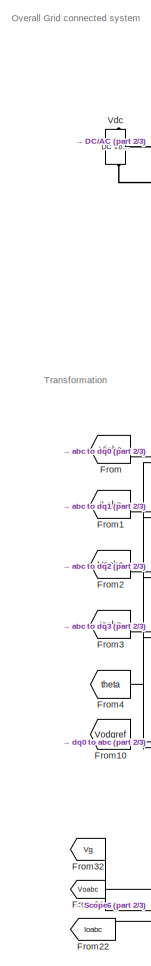
[diagram: root canvas - part 1/3, left side, full height]
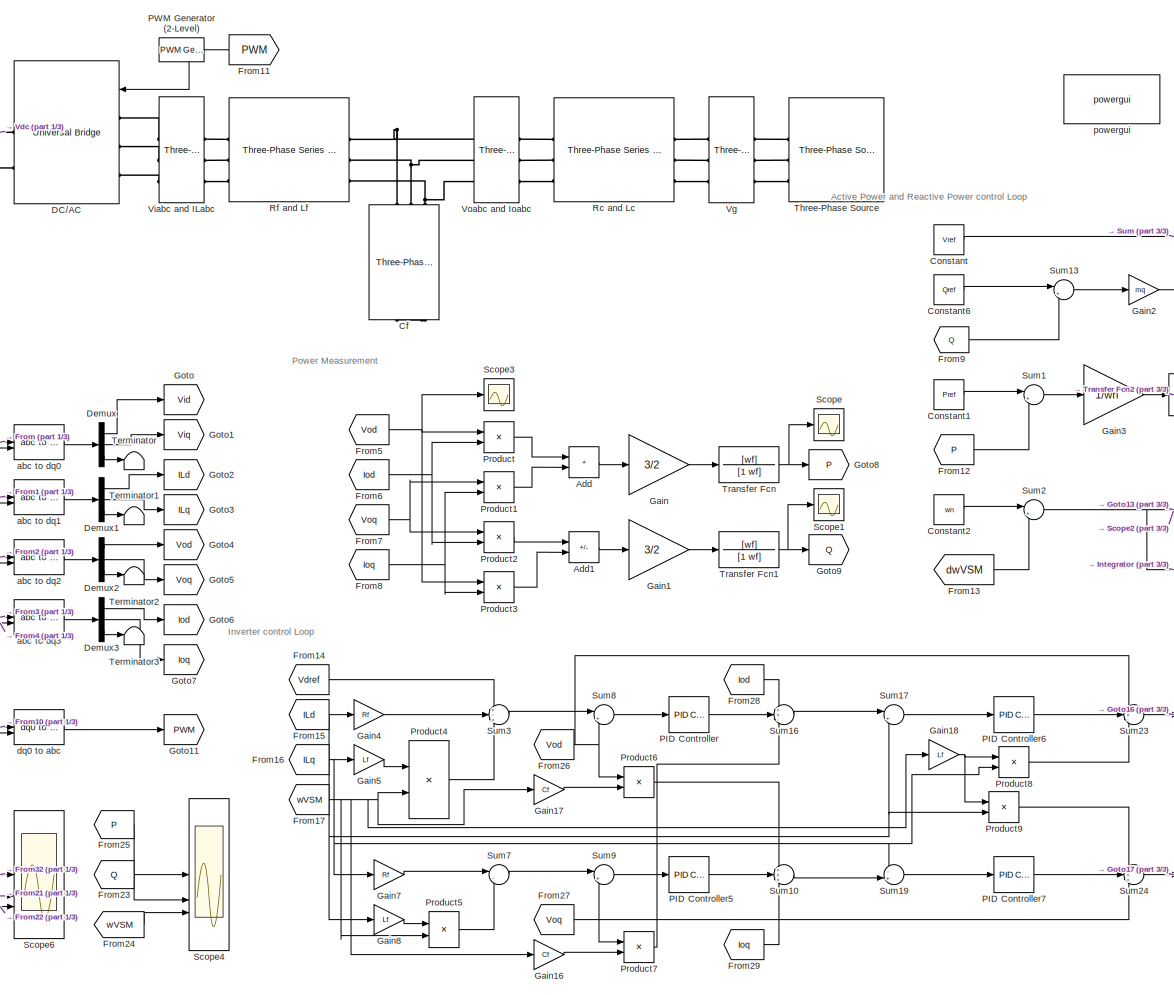
[diagram: root canvas - part 2/3, center side, full height]
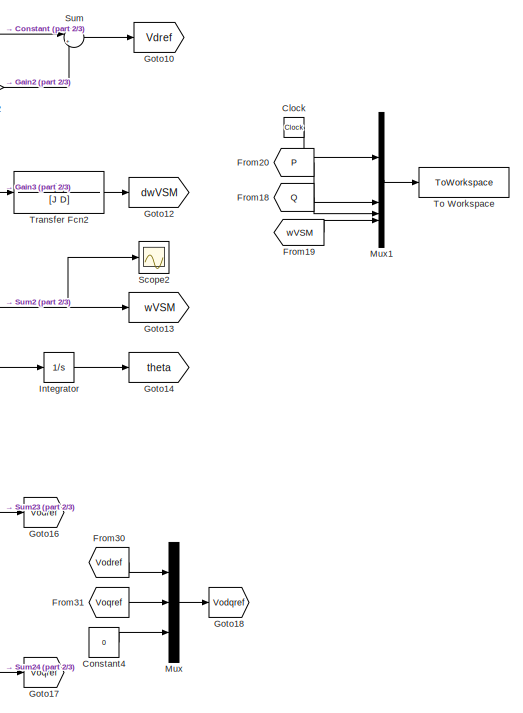
[diagram: root canvas - part 3/3, middle right region]
MODEL slx_ceab11af17d0
KIND model
CONFIG AbsTol = auto
CONFIG EnableMultiTasking = off
CONFIG FixedStep = auto
CONFIG InitFcn = Vdc = 1000;\nVg = 400;\nVref = sqrt(2/3)*400;\nVqref = 0;\n\nf = 50;\nwf = 4*pi;\nfc = 10e3;\nwn = 2*pi*50;\n\nRf = 0.07;\nLf = 5.2e-3;\nCf = 100e-6;\nRc = 0.05;\nLc = 1.5e-4;\n\nPref = 50000;\nQref = 0;\nka = 3.14e-3;\nmq = 1e-5;\n\nKpv = 3;\nKiv = 400;\nKpc = 5;\nKic = 10;\n\nJ= 0.05;\nD= 100;\n%D = 1000;
CONFIG MaxStep = auto
CONFIG MinStep = auto
CONFIG RelTol = 1e-3
CONFIG SampleTimeConstraint = Unconstrained
CONFIG SolverName = VariableStepAuto
CONFIG StartTime = 0.0
CONFIG StopTime = 1
BLOCK [Sum] Add
  IconShape = rectangular
BLOCK [Sum] Add1
  IconShape = rectangular
  Inputs = +-
BLOCK [Reference] Cf  REF=spsThreePhaseSeriesRLCBranchLib/Three-Phase
Series RLC Branch
  AttributesFormatString = \n
  LibrarySourceBlock = sps_lib/Passives/Three-Phase\nSeries RLC Branch
  NameLocation = left
  SourceBlock = spsThreePhaseSeriesRLCBranchLib/Three-Phase\nSeries RLC Branch
  SourceType = Three-Phase Series RLC Branch
BLOCK [Clock] Clock
BLOCK [Constant] Constant
  Value = Vref
BLOCK [Constant] Constant1
  Value = Pref
BLOCK [Constant] Constant2
  Value = wn
BLOCK [Constant] Constant4
  Value = 0
BLOCK [Constant] Constant6
  Value = Qref
BLOCK [Reference] DC//AC  REF=spsUniversalBridgeLib/Universal Bridge
  LibrarySourceBlock = sps_lib/Power Electronics/Universal Bridge
  SourceBlock = spsUniversalBridgeLib/Universal Bridge
  SourceType = Universal Bridge
BLOCK [Demux] Demux
  Outputs = 3
BLOCK [Demux] Demux1
  Outputs = 3
BLOCK [Demux] Demux2
  Outputs = 3
BLOCK [Demux] Demux3
  Outputs = 3
BLOCK [From] From
  GotoTag = Viabc
  TagVisibility = global
BLOCK [From] From1
  GotoTag = ILabc
  TagVisibility = global
BLOCK [From] From10
  GotoTag = Vodqref
BLOCK [From] From11
  GotoTag = PWM
  NameLocation = top
BLOCK [From] From12
  GotoTag = P
BLOCK [From] From13
  GotoTag = dwVSM
BLOCK [From] From14
  GotoTag = Vdref
BLOCK [From] From15
  GotoTag = ILd
BLOCK [From] From16
  GotoTag = ILq
BLOCK [From] From17
  GotoTag = wVSM
BLOCK [From] From18
  GotoTag = Q
BLOCK [From] From19
  GotoTag = wVSM
BLOCK [From] From2
  GotoTag = Voabc
  TagVisibility = global
BLOCK [From] From20
  GotoTag = P
BLOCK [From] From21
  GotoTag = Voabc
  TagVisibility = global
BLOCK [From] From22
  GotoTag = Ioabc
  TagVisibility = global
BLOCK [From] From23
  GotoTag = Q
BLOCK [From] From24
  GotoTag = wVSM
BLOCK [From] From25
  GotoTag = P
BLOCK [From] From26
  GotoTag = Vod
BLOCK [From] From27
  GotoTag = Voq
BLOCK [From] From28
  GotoTag = Iod
BLOCK [From] From29
  GotoTag = Ioq
BLOCK [From] From3
  GotoTag = Ioabc
  TagVisibility = global
BLOCK [From] From30
  GotoTag = Vodref
BLOCK [From] From31
  GotoTag = Voqref
BLOCK [From] From32
  GotoTag = Vg
  TagVisibility = global
BLOCK [From] From4
  GotoTag = theta
BLOCK [From] From5
  GotoTag = Vod
BLOCK [From] From6
  GotoTag = Iod
BLOCK [From] From7
  GotoTag = Voq
BLOCK [From] From8
  GotoTag = Ioq
BLOCK [From] From9
  GotoTag = Q
BLOCK [Gain] Gain
  Gain = 3/2
BLOCK [Gain] Gain1
  Gain = 3/2
BLOCK [Gain] Gain16
  Gain = Cf
BLOCK [Gain] Gain17
  Gain = Cf
BLOCK [Gain] Gain18
  Gain = Lf
BLOCK [Gain] Gain2
  Gain = mq
BLOCK [Gain] Gain3
  Gain = 1/wn
BLOCK [Gain] Gain4
  Gain = Rf
BLOCK [Gain] Gain5
  Gain = Lf
BLOCK [Gain] Gain7
  Gain = Rf
BLOCK [Gain] Gain8
  Gain = Lf
BLOCK [Goto] Goto
  GotoTag = Vid
BLOCK [Goto] Goto1
  GotoTag = Viq
BLOCK [Goto] Goto10
  GotoTag = Vdref
BLOCK [Goto] Goto11
  GotoTag = PWM
BLOCK [Goto] Goto12
  GotoTag = dwVSM
BLOCK [Goto] Goto13
  GotoTag = wVSM
BLOCK [Goto] Goto14
  GotoTag = theta
BLOCK [Goto] Goto16
  GotoTag = Vodref
BLOCK [Goto] Goto17
  GotoTag = Voqref
BLOCK [Goto] Goto18
  GotoTag = Vodqref
BLOCK [Goto] Goto2
  GotoTag = ILd
BLOCK [Goto] Goto3
  GotoTag = ILq
BLOCK [Goto] Goto4
  GotoTag = Vod
BLOCK [Goto] Goto5
  GotoTag = Voq
BLOCK [Goto] Goto6
  GotoTag = Iod
BLOCK [Goto] Goto7
  GotoTag = Ioq
BLOCK [Goto] Goto8
  GotoTag = P
BLOCK [Goto] Goto9
  GotoTag = Q
BLOCK [Integrator] Integrator
BLOCK [Mux] Mux
  DisplayOption = bar
  Inputs = 3
BLOCK [Mux] Mux1
  DisplayOption = bar
BLOCK [Reference] PID Controller  REF=slpidlib/PID Controller
  LibrarySourceBlock = simulink/Continuous/PID Controller
  SourceBlock = slpidlib/PID Controller
  SourceType = PID 1dof
BLOCK [Reference] PID Controller5  REF=slpidlib/PID Controller
  LibrarySourceBlock = simulink/Continuous/PID Controller
  SourceBlock = slpidlib/PID Controller
  SourceType = PID 1dof
BLOCK [Reference] PID Controller6  REF=slpidlib/PID Controller
  LibrarySourceBlock = simulink/Continuous/PID Controller
  SourceBlock = slpidlib/PID Controller
  SourceType = PID 1dof
BLOCK [Reference] PID Controller7  REF=slpidlib/PID Controller
  LibrarySourceBlock = simulink/Continuous/PID Controller
  SourceBlock = slpidlib/PID Controller
  SourceType = PID 1dof
BLOCK [Reference] PWM Generator (2-Level)  REF=spsPWMGenerator2LevelLib/PWM Generator
(2-Level)
  LibrarySourceBlock = sps_lib/Power Electronics/Power Electronics Control/PWM Generator\n(2-Level)
  NameLocation = top
  SourceBlock = spsPWMGenerator2LevelLib/PWM Generator\n(2-Level)
  SourceType = PWM Generator (2-Level)
BLOCK [Product] Product
BLOCK [Product] Product1
BLOCK [Product] Product2
BLOCK [Product] Product3
BLOCK [Product] Product4
BLOCK [Product] Product5
BLOCK [Product] Product6
BLOCK [Product] Product7
BLOCK [Product] Product8
BLOCK [Product] Product9
BLOCK [Reference] Rc and Lc  REF=spsThreePhaseSeriesRLCBranchLib/Three-Phase
Series RLC Branch
  AttributesFormatString = \n
  LibrarySourceBlock = sps_lib/Passives/Three-Phase\nSeries RLC Branch
  SourceBlock = spsThreePhaseSeriesRLCBranchLib/Three-Phase\nSeries RLC Branch
  SourceType = Three-Phase Series RLC Branch
BLOCK [Reference] Rf and Lf  REF=spsThreePhaseSeriesRLCBranchLib/Three-Phase
Series RLC Branch
  AttributesFormatString = \n
  LibrarySourceBlock = sps_lib/Passives/Three-Phase\nSeries RLC Branch
  SourceBlock = spsThreePhaseSeriesRLCBranchLib/Three-Phase\nSeries RLC Branch
  SourceType = Three-Phase Series RLC Branch
BLOCK [Scope] Scope
  Floating = off
  NumInputPorts = 1
  ScopeSpecificationString = Simulink.scopes.TimeScopeBlockCfg('CurrentConfiguration', extmgr.ConfigurationSet(extmgr.Configuration('Core','General UI',true),extmgr.Configuration('Core','Source UI',true),extmgr.Configuration('Sources','WiredSimulink',true),extmgr.Configuration('Visuals','Time Domain',true,'SerializedDisplays',{struct('MinYLimReal','-2218.84313','MaxYLimReal','7127.94676','YLabelReal','','MinYLimMag','  0.0000...<+1471ch>
BLOCK [Scope] Scope1
  Floating = off
  NumInputPorts = 1
  ScopeSpecificationString = Simulink.scopes.TimeScopeBlockCfg('CurrentConfiguration', extmgr.ConfigurationSet(extmgr.Configuration('Core','General UI',true),extmgr.Configuration('Core','Source UI',true),extmgr.Configuration('Sources','WiredSimulink',true,'DataLoggingVariableName','ScopeData1'),extmgr.Configuration('Visuals','Time Domain',true,'SerializedDisplays',{struct('MinYLimReal','-3081.81455','MaxYLimReal','5540.28758'...<+1483ch>
BLOCK [Scope] Scope2
  Floating = off
  NumInputPorts = 1
  ScopeSpecificationString = Simulink.scopes.TimeScopeBlockCfg('CurrentConfiguration', extmgr.ConfigurationSet(extmgr.Configuration('Core','General UI',true),extmgr.Configuration('Core','Source UI',true),extmgr.Configuration('Sources','WiredSimulink',true,'DataLoggingVariableName','ScopeData2'),extmgr.Configuration('Visuals','Time Domain',true,'SerializedDisplays',{struct('MinYLimReal','313.95983','MaxYLimReal','315.95414','Y...<+1495ch>
BLOCK [Scope] Scope3
  Floating = off
  NumInputPorts = 1
  ScopeSpecificationString = Simulink.scopes.TimeScopeBlockCfg('CurrentConfiguration', extmgr.ConfigurationSet(extmgr.Configuration('Core','General UI',true),extmgr.Configuration('Core','Source UI',true),extmgr.Configuration('Sources','WiredSimulink',true,'DataLoggingVariableName','ScopeData3'),extmgr.Configuration('Visuals','Time Domain',true,'SerializedDisplays',{struct('MinYLimReal','-76.04018','MaxYLimReal','684.36161','Y...<+1495ch>
BLOCK [Scope] Scope4
  Floating = off
  NumInputPorts = 3
  ScopeSpecificationString = Simulink.scopes.TimeScopeBlockCfg('CurrentConfiguration', extmgr.ConfigurationSet(extmgr.Configuration('Core','General UI',true),extmgr.Configuration('Core','Source UI',true),extmgr.Configuration('Sources','WiredSimulink',true,'DataLoggingVariableName','omega_vsm','DataLogging',true,'DataLoggingSaveFormat','StructureWithTime'),extmgr.Configuration('Visuals','Time Domain',true,'SerializedDisplays',...<+3073ch>
BLOCK [Scope] Scope6
  Floating = off
  NumInputPorts = 3
  ScopeSpecificationString = Simulink.scopes.TimeScopeBlockCfg('CurrentConfiguration', extmgr.ConfigurationSet(extmgr.Configuration('Core','General UI',true,'FigureColor',[1 1 1]),extmgr.Configuration('Core','Source UI',true),extmgr.Configuration('Sources','WiredSimulink',true,'DataLoggingVariableName','ScopeData1'),extmgr.Configuration('Visuals','Time Domain',true,'SerializedDisplays',{struct('MinYLimReal','-408.24829','MaxY...<+4304ch>
BLOCK [Sum] Sum
  Inputs = |++
BLOCK [Sum] Sum1
  Inputs = |+-
BLOCK [Sum] Sum10
  Inputs = +++
BLOCK [Sum] Sum13
  Inputs = |+-
BLOCK [Sum] Sum16
  Inputs = ++-
BLOCK [Sum] Sum17
  Inputs = |+-
BLOCK [Sum] Sum19
  Inputs = -+|
BLOCK [Sum] Sum2
  Inputs = |++
BLOCK [Sum] Sum23
  Inputs = ++-
BLOCK [Sum] Sum24
  Inputs = +++
BLOCK [Sum] Sum3
  Inputs = +-+
BLOCK [Sum] Sum7
  Inputs = |--
BLOCK [Sum] Sum8
  Inputs = |+-
BLOCK [Sum] Sum9
  Inputs = |+-
BLOCK [Terminator] Terminator
BLOCK [Terminator] Terminator1
BLOCK [Terminator] Terminator2
BLOCK [Terminator] Terminator3
BLOCK [Reference] Three-Phase Source  REF=spsThreePhaseSourceLib/Three-Phase Source
  LibrarySourceBlock = sps_lib/Sources/Three-Phase Source
  NameLocation = top
  SourceBlock = spsThreePhaseSourceLib/Three-Phase Source
  SourceType = Three-Phase Source
BLOCK [ToWorkspace] To Workspace
  FixptAsFi = on
  MaxDataPoints = inf
  SampleTime = 0.001
  VariableName = Data
BLOCK [TransferFcn] Transfer Fcn
  Denominator = [1 wf]
  Numerator = [wf]
BLOCK [TransferFcn] Transfer Fcn1
  Denominator = [1 wf]
  Numerator = [wf]
BLOCK [TransferFcn] Transfer Fcn2
  Denominator = [J D]
BLOCK [Reference] Vdc  REF=spsDCVoltageSourceLib/DC Voltage Source
  LibrarySourceBlock = sps_lib/Sources/DC Voltage Source
  NameLocation = left
  SourceBlock = spsDCVoltageSourceLib/DC Voltage Source
  SourceType = DC Voltage Source
BLOCK [Reference] Vg  REF=spsThreePhaseVIMeasurementLib/Three-Phase
V-I Measurement
  LibrarySourceBlock = sps_lib/Sensors and Measurements/Three-Phase\nV-I Measurement
  SourceBlock = spsThreePhaseVIMeasurementLib/Three-Phase\nV-I Measurement
  SourceType = Three-Phase VI Measurement
BLOCK [Reference] Viabc and ILabc   REF=spsThreePhaseVIMeasurementLib/Three-Phase
V-I Measurement
  LibrarySourceBlock = sps_lib/Sensors and Measurements/Three-Phase\nV-I Measurement
  SourceBlock = spsThreePhaseVIMeasurementLib/Three-Phase\nV-I Measurement
  SourceType = Three-Phase VI Measurement
BLOCK [Reference] Voabc and Ioabc  REF=spsThreePhaseVIMeasurementLib/Three-Phase
V-I Measurement
  LibrarySourceBlock = sps_lib/Sensors and Measurements/Three-Phase\nV-I Measurement
  SourceBlock = spsThreePhaseVIMeasurementLib/Three-Phase\nV-I Measurement
  SourceType = Three-Phase VI Measurement
BLOCK [Reference] abc to dq0  REF=spsabctodq0Lib/abc to dq0
  LibrarySourceBlock = sps_lib/Control/abc to dq0
  SourceBlock = spsabctodq0Lib/abc to dq0
  SourceType = abc to dq0 Transformation
BLOCK [Reference] abc to dq1  REF=spsabctodq0Lib/abc to dq0
  LibrarySourceBlock = sps_lib/Control/abc to dq0
  SourceBlock = spsabctodq0Lib/abc to dq0
  SourceType = abc to dq0 Transformation
BLOCK [Reference] abc to dq2  REF=spsabctodq0Lib/abc to dq0
  LibrarySourceBlock = sps_lib/Control/abc to dq0
  SourceBlock = spsabctodq0Lib/abc to dq0
  SourceType = abc to dq0 Transformation
BLOCK [Reference] abc to dq3  REF=spsabctodq0Lib/abc to dq0
  LibrarySourceBlock = sps_lib/Control/abc to dq0
  SourceBlock = spsabctodq0Lib/abc to dq0
  SourceType = abc to dq0 Transformation
BLOCK [Reference] dq0 to abc  REF=spsdq0toabcLib/dq0 to abc
  LibrarySourceBlock = sps_lib/Control/dq0 to abc
  SourceBlock = spsdq0toabcLib/dq0 to abc
  SourceType = dq0 to abc Transformation
BLOCK [Reference] powergui  REF=sps_lib/powergui
  LibrarySourceBlock = sps_lib/powergui
  Priority = 1
  SourceBlock = sps_lib/powergui
  SourceType = PSB option menu block
ANNOTATION (root): Active Power and Reactive Power control Loop
ANNOTATION (root): Inverter control Loop
ANNOTATION (root): Overall Grid connected system
ANNOTATION (root): Power Measurement
ANNOTATION (root): Transformation
LINE Add1:1 -> Gain1:1
LINE Add:1 -> Gain:1
LINE Clock:1 -> Mux1:1
LINE Constant1:1 -> Sum1:1
LINE Constant2:1 -> Sum2:1
LINE Constant4:1 -> Mux:3
LINE Constant6:1 -> Sum13:1
LINE Constant:1 -> Sum:1
LINE Demux1:1 -> Goto2:1
LINE Demux1:2 -> Goto3:1
LINE Demux1:3 -> Terminator1:1
LINE Demux2:1 -> Goto4:1
LINE Demux2:2 -> Goto5:1
LINE Demux2:3 -> Terminator2:1
LINE Demux3:1 -> Goto6:1
LINE Demux3:2 -> Goto7:1
LINE Demux3:3 -> Terminator3:1
LINE Demux:1 -> Goto:1
LINE Demux:2 -> Goto1:1
LINE Demux:3 -> Terminator:1
LINE From10:1 -> dq0 to abc:1
LINE From11:1 -> PWM Generator (2-Level):1
LINE From12:1 -> Sum1:2
LINE From13:1 -> Sum2:2
LINE From14:1 -> Sum3:1
NET From15:1 -> Gain4:1, Gain8:1, Product9:2, Sum17:2
NET From16:1 -> Gain5:1, Gain7:1, Product8:2, Sum19:1
NET From17:1 -> Gain16:1, Gain17:1, Gain18:1, Product4:2, Product5:2
LINE From18:1 -> Mux1:3
LINE From19:1 -> Mux1:4
LINE From1:1 -> abc to dq1:1
LINE From20:1 -> Mux1:2
LINE From21:1 -> Scope6:2
LINE From22:1 -> Scope6:3
LINE From23:1 -> Scope4:2
LINE From24:1 -> Scope4:3
LINE From25:1 -> Scope4:1
NET From26:1 -> Product6:1, Sum23:1, Sum8:2
NET From27:1 -> Product7:1, Sum24:3, Sum9:2
LINE From28:1 -> Sum16:1
LINE From29:1 -> Sum10:3
LINE From2:1 -> abc to dq2:1
LINE From30:1 -> Mux:1
LINE From31:1 -> Mux:2
LINE From32:1 -> Scope6:1
LINE From3:1 -> abc to dq3:1
NET From4:1 -> abc to dq0:2, abc to dq1:2, abc to dq2:2, abc to dq3:2, dq0 to abc:2
NET From5:1 -> Product3:1, Product:1, Scope3:1
NET From6:1 -> Product2:2, Product:2
NET From7:1 -> Product1:1, Product2:1
NET From8:1 -> Product1:2, Product3:2
LINE From9:1 -> Sum13:2
LINE From:1 -> abc to dq0:1
LINE Gain16:1 -> Product7:2
LINE Gain17:1 -> Product6:2
NET Gain18:1 -> Product8:1, Product9:1
LINE Gain1:1 -> Transfer Fcn1:1
LINE Gain2:1 -> Sum:2
LINE Gain3:1 -> Transfer Fcn2:1
LINE Gain4:1 -> Sum3:2
LINE Gain5:1 -> Product4:1
LINE Gain7:1 -> Sum7:1
LINE Gain8:1 -> Product5:1
LINE Gain:1 -> Transfer Fcn:1
LINE Integrator:1 -> Goto14:1
LINE Mux1:1 -> To Workspace:1
LINE Mux:1 -> Goto18:1
LINE PID Controller5:1 -> Sum10:2
LINE PID Controller6:1 -> Sum23:2
LINE PID Controller7:1 -> Sum24:2
LINE PID Controller:1 -> Sum16:2
LINE PWM Generator (2-Level):1 -> DC//AC:1
LINE Product1:1 -> Add:2
LINE Product2:1 -> Add1:1
LINE Product3:1 -> Add1:2
LINE Product4:1 -> Sum3:3
LINE Product5:1 -> Sum7:2
LINE Product6:1 -> Sum10:1
LINE Product7:1 -> Sum16:3
LINE Product8:1 -> Sum23:3
LINE Product9:1 -> Sum24:1
LINE Product:1 -> Add:1
LINE Sum10:1 -> Sum19:2
LINE Sum13:1 -> Gain2:1
LINE Sum16:1 -> Sum17:1
LINE Sum17:1 -> PID Controller6:1
LINE Sum19:1 -> PID Controller7:1
LINE Sum1:1 -> Gain3:1
LINE Sum23:1 -> Goto16:1
LINE Sum24:1 -> Goto17:1
NET Sum2:1 -> Goto13:1, Integrator:1, Scope2:1
LINE Sum3:1 -> Sum8:1
LINE Sum7:1 -> Sum9:1
LINE Sum8:1 -> PID Controller:1
LINE Sum9:1 -> PID Controller5:1
LINE Sum:1 -> Goto10:1
NET Transfer Fcn1:1 -> Goto9:1, Scope1:1
LINE Transfer Fcn2:1 -> Goto12:1
NET Transfer Fcn:1 -> Goto8:1, Scope:1
LINE abc to dq0:1 -> Demux:1
LINE abc to dq1:1 -> Demux1:1
LINE abc to dq2:1 -> Demux2:1
LINE abc to dq3:1 -> Demux3:1
LINE dq0 to abc:1 -> Goto11:1
PNET net1: Cf:LConn1 -- Rf and Lf:RConn1 -- Voabc and Ioabc:LConn1
PNET net2: Cf:LConn2 -- Rf and Lf:RConn2 -- Voabc and Ioabc:LConn2
PNET net3: Cf:LConn3 -- Rf and Lf:RConn3 -- Voabc and Ioabc:LConn3
PNET net4: Cf:RConn1 -- Cf:RConn2 -- Cf:RConn3
PLINE DC//AC:LConn1 -- Viabc and ILabc :LConn1
PLINE DC//AC:LConn2 -- Viabc and ILabc :LConn2
PLINE DC//AC:LConn3 -- Viabc and ILabc :LConn3
PLINE DC//AC:RConn1 -- Vdc:RConn1
PLINE DC//AC:RConn2 -- Vdc:LConn1
PLINE Rc and Lc:LConn1 -- Voabc and Ioabc:RConn1
PLINE Rc and Lc:LConn2 -- Voabc and Ioabc:RConn2
PLINE Rc and Lc:LConn3 -- Voabc and Ioabc:RConn3
PLINE Rc and Lc:RConn1 -- Vg:LConn1
PLINE Rc and Lc:RConn2 -- Vg:LConn2
PLINE Rc and Lc:RConn3 -- Vg:LConn3
PLINE Rf and Lf:LConn1 -- Viabc and ILabc :RConn1
PLINE Rf and Lf:LConn2 -- Viabc and ILabc :RConn2
PLINE Rf and Lf:LConn3 -- Viabc and ILabc :RConn3
PLINE Three-Phase Source:RConn1 -- Vg:RConn1
PLINE Three-Phase Source:RConn2 -- Vg:RConn2
PLINE Three-Phase Source:RConn3 -- Vg:RConn3
note: NET lines group one-source signal fan-out (src -> all destinations, sorted); 1:1 wires keep LINE; PNET lines group multi-terminal physical nets as a canonical sorted terminal list (undirected conserving connections); 2-terminal nets keep the pairwise PLINE form
